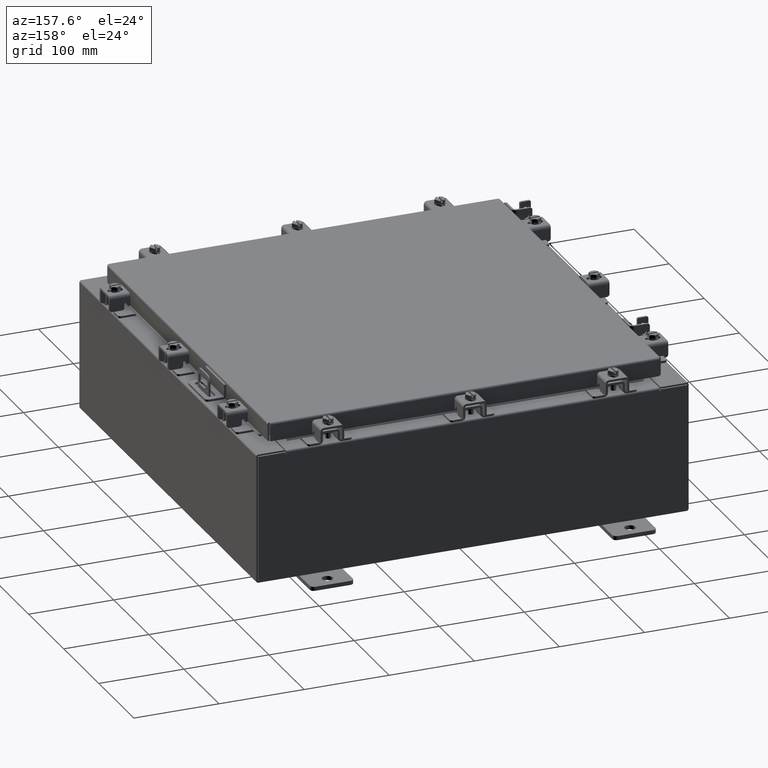
[diagram: clean part render]
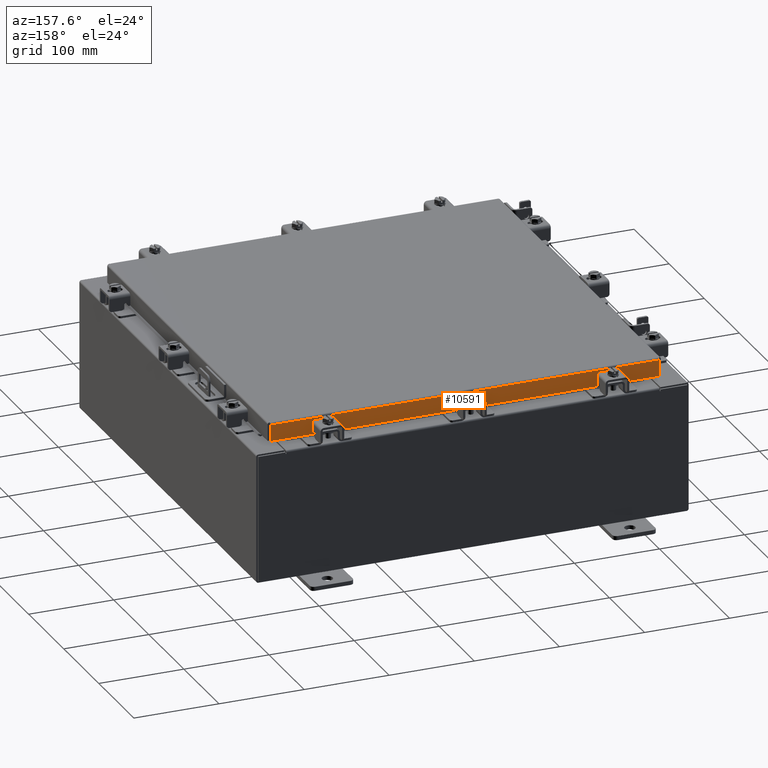
[diagram: same view with one face highlighted and labeled with its STEP entity id]
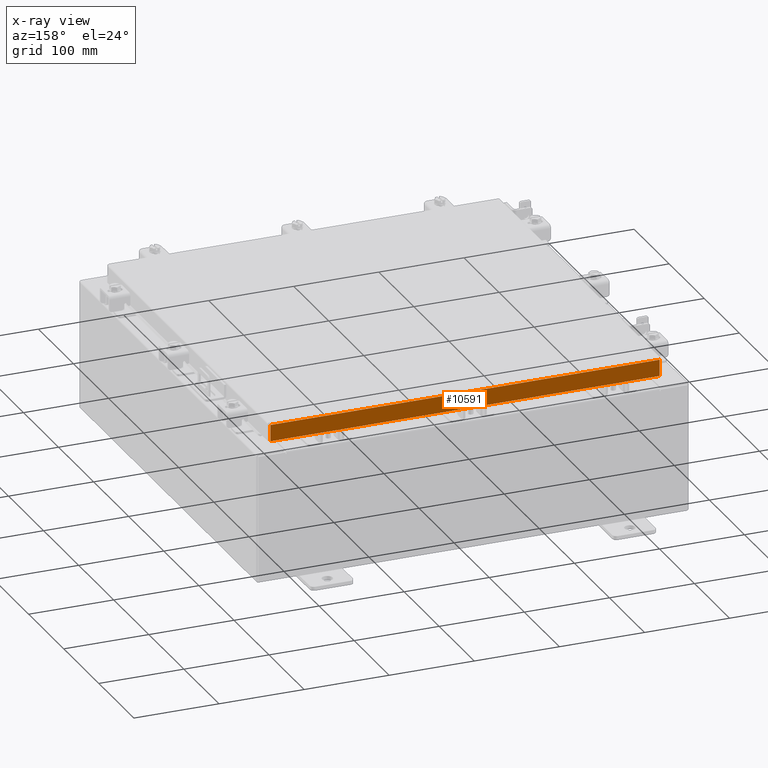
[diagram: x-ray of the same camera — body ghosted, the highlighted face saturated]
A machine part, auxiliary view. The second image highlights one B-rep face of the part: STEP entity #10591.
The next image is the same camera in x-ray: the body ghosted, the highlighted face saturated — about 0% of this face is hidden behind the body in this view.
In plain terms, the highlighted planar face has unit normal (0, -1, -0).
Its self-contained STEP definition (entity closure, byte-faithful):
#333 = CARTESIAN_POINT ( 'NONE',  ( -9.093999999999999400, 9.093999999999999400, -0.08770000000000026400 ) ) ;
#658 = ORIENTED_EDGE ( 'NONE', *, *, #9047, .T. ) ;
#824 = DIRECTION ( 'NONE',  ( 0.0000000000000000000, 2.818880942772352200E-015, -1.000000000000000000 ) ) ;
#1116 = CARTESIAN_POINT ( 'NONE',  ( -8.255157864376265300, 9.093999999999997600, -0.8500000000000043100 ) ) ;
#1259 = EDGE_CURVE ( 'NONE', #18824, #15281, #2614, .T. ) ;
#1459 = LINE ( 'NONE', #3393, #19532 ) ;
#2472 = CARTESIAN_POINT ( 'NONE',  ( -9.005157864376267100, 9.093999999999999400, -0.08770000000000026400 ) ) ;
#2614 = LINE ( 'NONE', #5480, #16064 ) ;
#2650 = ORIENTED_EDGE ( 'NONE', *, *, #1259, .F. ) ;
#3229 = VECTOR ( 'NONE', #16907, 39.37007874015748100 ) ;
#3393 = CARTESIAN_POINT ( 'NONE',  ( -9.093999999999999400, 9.094000000000001200, -0.8500000000000020900 ) ) ;
#3760 = EDGE_LOOP ( 'NONE', ( #6884, #658, #10834, #7499, #2650, #5449 ) ) ;
#5449 = ORIENTED_EDGE ( 'NONE', *, *, #20224, .F. ) ;
#5480 = CARTESIAN_POINT ( 'NONE',  ( -9.093999999999999400, 9.094000000000001200, -0.8500000000000020900 ) ) ;
#5761 = LINE ( 'NONE', #19485, #15129 ) ;
#6628 = DIRECTION ( 'NONE',  ( 1.000000000000000000, -4.379057701015054300E-047, 1.201604571657912400E-016 ) ) ;
#6799 = CARTESIAN_POINT ( 'NONE',  ( -9.005157864376267100, 9.094000000000001200, -0.8500000000000020900 ) ) ;
#6884 = ORIENTED_EDGE ( 'NONE', *, *, #17549, .F. ) ;
#7458 = CARTESIAN_POINT ( 'NONE',  ( 8.255157864376268900, 9.093999999999997600, -0.8500000000000043100 ) ) ;
#7499 = ORIENTED_EDGE ( 'NONE', *, *, #14408, .F. ) ;
#7724 = EDGE_CURVE ( 'NONE', #16382, #22055, #1459, .T. ) ;
#8460 = VECTOR ( 'NONE', #10173, 39.37007874015748100 ) ;
#8465 = CARTESIAN_POINT ( 'NONE',  ( -9.005157864376267100, 9.093999999999999400, -0.07470000000000015500 ) ) ;
#8996 = DIRECTION ( 'NONE',  ( 0.0000000000000000000, 2.818880942772352200E-015, -1.000000000000000000 ) ) ;
#9047 = EDGE_CURVE ( 'NONE', #16551, #22055, #5761, .T. ) ;
#9522 = CARTESIAN_POINT ( 'NONE',  ( 0.0000000000000000000, 9.093999999999999400, 2.622574073917692700E-014 ) ) ;
#10173 = DIRECTION ( 'NONE',  ( -0.0000000000000000000, 2.818880942772352200E-015, -1.000000000000000000 ) ) ;
#10197 = FACE_OUTER_BOUND ( 'NONE', #3760, .T. ) ;
#10591 = ADVANCED_FACE ( 'NONE', ( #10197 ), #11137, .F. ) ;
#10834 = ORIENTED_EDGE ( 'NONE', *, *, #7724, .F. ) ;
#10966 = LINE ( 'NONE', #333, #19749 ) ;
#11095 = AXIS2_PLACEMENT_3D ( 'NONE', #9522, #11274, #824 ) ;
#11137 = PLANE ( 'NONE',  #11095 ) ;
#11274 = DIRECTION ( 'NONE',  ( 3.387180227794624200E-031, -1.000000000000000000, -2.818880942772352200E-015 ) ) ;
#13382 = CARTESIAN_POINT ( 'NONE',  ( 9.005157864376270600, 9.094000000000001200, -0.8499999999999999800 ) ) ;
#13402 = CARTESIAN_POINT ( 'NONE',  ( -8.255157864376265300, 9.093999999999997600, -0.8500000000000043100 ) ) ;
#14343 = DIRECTION ( 'NONE',  ( -1.000000000000000000, -3.387180227794624200E-031, -9.232666117091613100E-046 ) ) ;
#14408 = EDGE_CURVE ( 'NONE', #15281, #16382, #21831, .T. ) ;
#15129 = VECTOR ( 'NONE', #8996, 39.37007874015748100 ) ;
#15281 = VERTEX_POINT ( 'NONE', #1116 ) ;
#16064 = VECTOR ( 'NONE', #6628, 39.37007874015748100 ) ;
#16382 = VERTEX_POINT ( 'NONE', #7458 ) ;
#16551 = VERTEX_POINT ( 'NONE', #20178 ) ;
#16907 = DIRECTION ( 'NONE',  ( 1.000000000000000000, -0.0000000000000000000, -0.0000000000000000000 ) ) ;
#17240 = LINE ( 'NONE', #8465, #8460 ) ;
#17549 = EDGE_CURVE ( 'NONE', #16551, #22519, #10966, .T. ) ;
#18824 = VERTEX_POINT ( 'NONE', #6799 ) ;
#19196 = DIRECTION ( 'NONE',  ( 1.000000000000000000, -4.379057701015054300E-047, 1.201604571657912400E-016 ) ) ;
#19485 = CARTESIAN_POINT ( 'NONE',  ( 9.005157864376268900, 9.093999999999999400, 2.622574073917692700E-014 ) ) ;
#19532 = VECTOR ( 'NONE', #19196, 39.37007874015748100 ) ;
#19749 = VECTOR ( 'NONE', #14343, 39.37007874015748100 ) ;
#20178 = CARTESIAN_POINT ( 'NONE',  ( 9.005157864376270600, 9.093999999999999400, -0.08770000000000026400 ) ) ;
#20224 = EDGE_CURVE ( 'NONE', #22519, #18824, #17240, .T. ) ;
#21831 = LINE ( 'NONE', #13402, #3229 ) ;
#22055 = VERTEX_POINT ( 'NONE', #13382 ) ;
#22519 = VERTEX_POINT ( 'NONE', #2472 ) ;